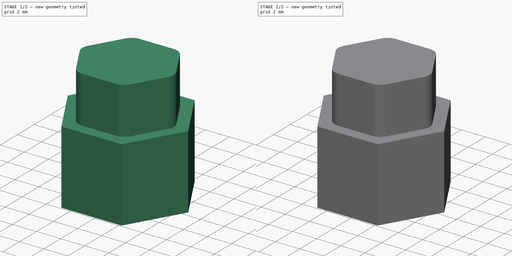
[diagram: build sequence overview — one tinted view per stage of 2, left to right]
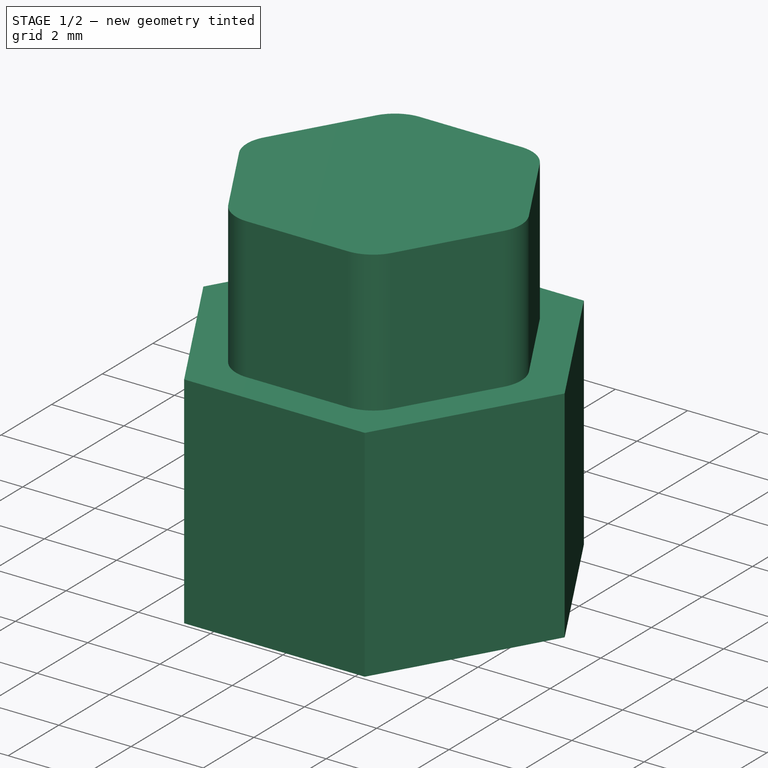
[diagram: stage 1 of 2 — iso view after this stage's code; geometry added in this stage tinted green]
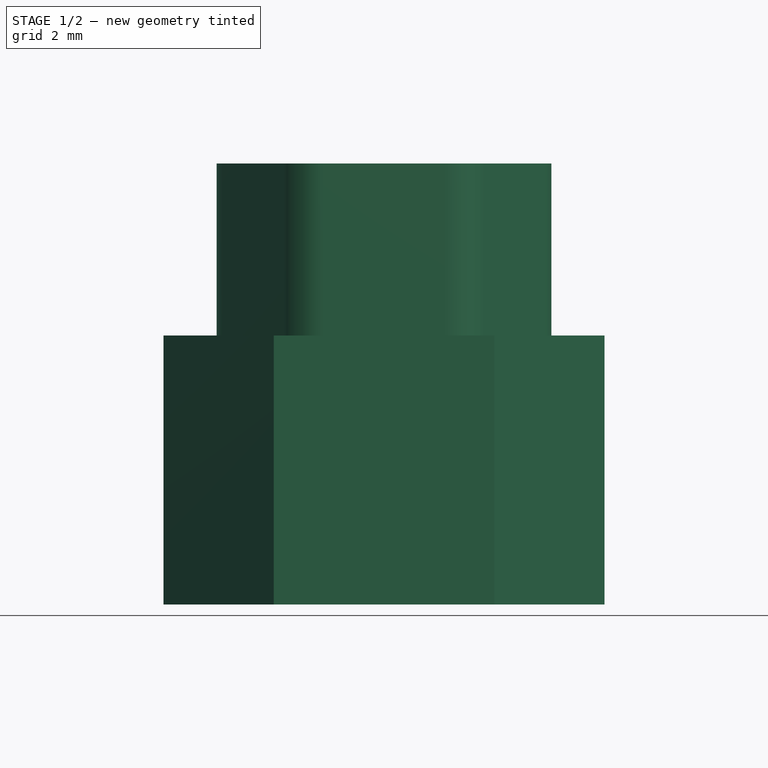
[diagram: stage 1 of 2 — front view after this stage's code; geometry added in this stage tinted green]
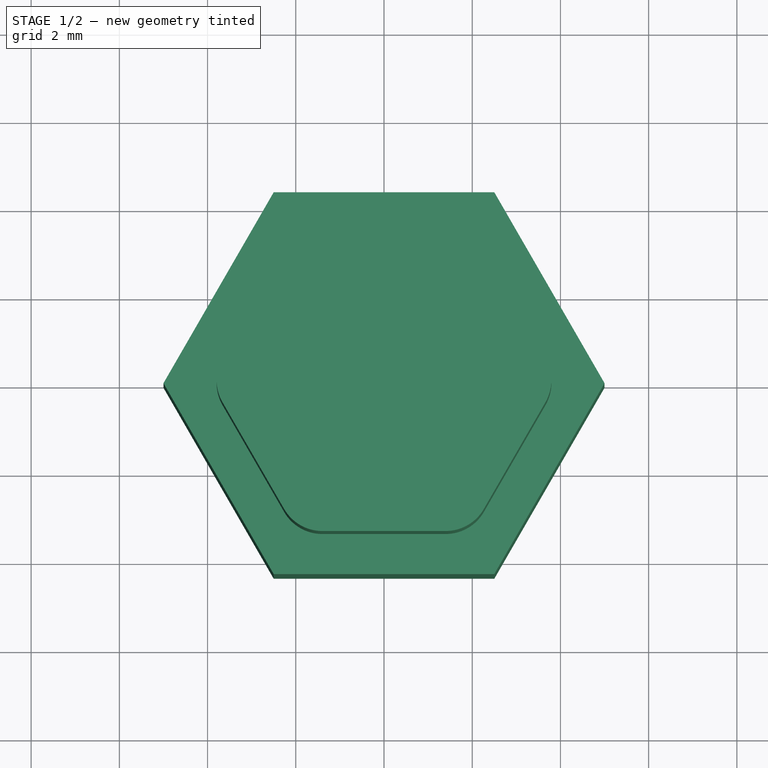
[diagram: stage 1 of 2 — top view after this stage's code; geometry added in this stage tinted green]
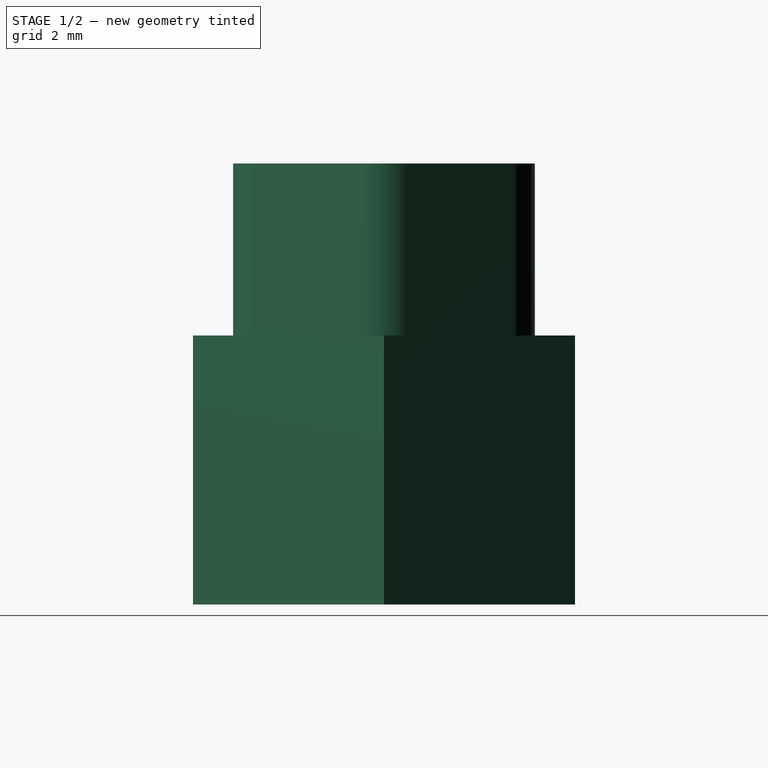
[diagram: stage 1 of 2 — right view after this stage's code; geometry added in this stage tinted green]
FCSTD DOCUMENT  (FreeCAD 0.21R33694 (Git))
Label: button-fc21-6
License: All rights reserved
LicenseURL: http://en.wikipedia.org/wiki/All_rights_reserved
objects: Sketcher::SketchObject×3, PartDesign::Pad×2, PartDesign::Plane×2, PartDesign::Pocket×1, PartDesign::Body×1
note: 12 computed .brp shape members not serialized (recipe doc carries the construction recipe); baked Part::Feature solids carry a one-line shape summary decoded from their .brp

FEATURE [Sketcher::SketchObject] Sketch
  FullyConstrained = true
  MapMode = 5
  Support = -> [XY_Plane]
  sketch-geometry (19):
    g0: LineSegment StartX=1.975 StartY=-3.4208 StartZ=0 EndX=3.95 EndY=0 EndZ=0
    g1: LineSegment StartX=3.95 StartY=0 StartZ=0 EndX=1.975 EndY=3.4208 EndZ=0
    g2: LineSegment StartX=1.975 StartY=3.4208 StartZ=0 EndX=-1.975 EndY=3.4208 EndZ=0
    g3: LineSegment StartX=-1.975 StartY=3.4208 StartZ=0 EndX=-3.95 EndY=0 EndZ=0
    g4: LineSegment StartX=-3.95 StartY=0 StartZ=0 EndX=-1.975 EndY=-3.4208 EndZ=0
    g5: LineSegment StartX=-1.975 StartY=-3.4208 StartZ=0 EndX=1.975 EndY=-3.4208 EndZ=0
    g6: Circle CenterX=0 CenterY=0 CenterZ=0 NormalX=0 NormalY=0 NormalZ=1 AngleXU=0 Radius=3.95
    g7: LineSegment StartX=-3.66133 StartY=0.49999 StartZ=0 EndX=-2.26368 EndY=2.92079 EndZ=0
    g8: LineSegment StartX=-1.39765 StartY=3.4208 StartZ=0 EndX=1.39765 EndY=3.4208 EndZ=0
    g9: LineSegment StartX=2.26368 StartY=2.92079 StartZ=0 EndX=3.66133 EndY=0.49999 EndZ=0
    g10: LineSegment StartX=3.66133 StartY=-0.49999 StartZ=0 EndX=2.26368 EndY=-2.92079 EndZ=0
    g11: LineSegment StartX=1.39765 StartY=-3.4208 StartZ=0 EndX=-1.39765 EndY=-3.4208 EndZ=0
    g12: LineSegment StartX=-2.26368 StartY=-2.92079 StartZ=0 EndX=-3.66133 EndY=-0.49999 EndZ=0
    g13: ArcOfCircle CenterX=1.39765 CenterY=2.4208 CenterZ=0 NormalX=0 NormalY=0 NormalZ=1 AngleXU=0 Radius=1 StartAngle=0.523588 EndAngle=1.5708
    g14: ArcOfCircle CenterX=2.7953 CenterY=1.4e-15 CenterZ=0 NormalX=0 NormalY=0 NormalZ=1 AngleXU=0 Radius=1 StartAngle=5.7596 EndAngle=6.80677
    g15: ArcOfCircle CenterX=1.39765 CenterY=-2.4208 CenterZ=0 NormalX=0 NormalY=0 NormalZ=1 AngleXU=0 Radius=1 StartAngle=4.71239 EndAngle=5.7596
    g16: ArcOfCircle CenterX=-1.39765 CenterY=-2.4208 CenterZ=0 NormalX=0 NormalY=0 NormalZ=1 AngleXU=0 Radius=1 StartAngle=3.66518 EndAngle=4.71239
    g17: ArcOfCircle CenterX=-2.7953 CenterY=2e-16 CenterZ=0 NormalX=0 NormalY=0 NormalZ=1 AngleXU=0 Radius=1 StartAngle=2.61801 EndAngle=3.66518
    g18: ArcOfCircle CenterX=-1.39765 CenterY=2.4208 CenterZ=0 NormalX=0 NormalY=0 NormalZ=1 AngleXU=0 Radius=1 StartAngle=1.5708 EndAngle=2.61801
  constraints (55):
    c: Coincident(g0,g1)
    c: Coincident(g1,g2)
    c: Coincident(g2,g3)
    c: Coincident(g3,g4)
    c: Coincident(g4,g5)
    c: Coincident(g5,g0)
    c: Equal(g0, g1-g5) x5
    c: PointOnObject(g0,g6)
    c: PointOnObject(g1,g6)
    c: PointOnObject(g2,g6)
    c: PointOnObject(g3,g6)
    c: PointOnObject(g4,g6)
    c: PointOnObject(g5,g6)
    c: Coincident(g6,g-1)
    c: Horizontal(g2)
    c: DistanceX(g3,g0) = 7.9
    c: Horizontal(g8)
    c: Horizontal(g11)
    c: Equal(g7,g8)
    c: Equal(g8,g9)
    c: Equal(g9,g10)
    c: Equal(g10,g11)
    c: Equal(g11,g12)
    c: Coincident(g13,g8)
    c: Coincident(g13,g9)
    c: Coincident(g14,g9)
    c: Coincident(g14,g10)
    c: Coincident(g15,g10)
    c: Coincident(g15,g11)
    c: Coincident(g16,g11)
    c: Coincident(g16,g12)
    c: Coincident(g17,g12)
    c: Coincident(g17,g7)
    c: Coincident(g18,g8)
    c: Coincident(g18,g7)
    c: Equal(g17,g18)
    c: Equal(g17, g13-g16) x4
    c: Radius(g17) = 1
    c: PointOnObject(g8,g2)
    c: PointOnObject(g9,g1)
    c: PointOnObject(g9,g1)
    c: PointOnObject(g10,g0)
    c: PointOnObject(g10,g0)
    c: PointOnObject(g11,g5)
    c: PointOnObject(g12,g4)
    c: PointOnObject(g12,g4)
    c: PointOnObject(g7,g3)
    c: PointOnObject(g7,g3)
    c: Horizontal(g10,g12)
    c: Horizontal(g7,g9)
    c: Tangent(g4,g16)
    c: Tangent(g5,g15)
    c: Tangent(g2,g18)
    c: Tangent(g13,g1)
    c: Tangent(g0,g14)
FEATURE [PartDesign::Pad] Pad
  Direction = (0,0,1)
  Length = 3.9
  Length2 = 10
  Profile = -> Sketch
  ReferenceAxis = -> Sketch [N_Axis]
  Type = 0
FEATURE [PartDesign::Plane] DatumPlane
  Length = 60
  MapMode = 5
  Placement = pos=(0,0,0) rot=(1,0,0;3.14159rad)
  ResizeMode = 0
  Support = -> [Pad]
  Width = 60
FEATURE [Sketcher::SketchObject] Sketch001
  FullyConstrained = true
  MapMode = 5
  Placement = pos=(0,0,0) rot=(1,0,0;3.14159rad)
  Support = -> [DatumPlane]
  sketch-geometry (7):
    g0: LineSegment StartX=5 StartY=9e-16 StartZ=0 EndX=2.5 EndY=4.33013 EndZ=0
    g1: LineSegment StartX=2.5 StartY=4.33013 StartZ=0 EndX=-2.5 EndY=4.33013 EndZ=0
    g2: LineSegment StartX=-2.5 StartY=4.33013 StartZ=0 EndX=-5 EndY=9e-16 EndZ=0
    g3: LineSegment StartX=-5 StartY=9e-16 StartZ=0 EndX=-2.5 EndY=-4.33013 EndZ=0
    g4: LineSegment StartX=-2.5 StartY=-4.33013 StartZ=0 EndX=2.5 EndY=-4.33013 EndZ=0
    g5: LineSegment StartX=2.5 StartY=-4.33013 StartZ=0 EndX=5 EndY=9e-16 EndZ=0
    g6: Circle CenterX=0 CenterY=0 CenterZ=0 NormalX=0 NormalY=0 NormalZ=1 AngleXU=0 Radius=5
  constraints (16):
    c: Coincident(g0,g1)
    c: Coincident(g1,g2)
    c: Coincident(g2,g3)
    c: Coincident(g3,g4)
    c: Coincident(g4,g5)
    c: Coincident(g5,g0)
    c: Equal(g0, g1-g5) x5
    c: PointOnObject(g0,g6)
    c: PointOnObject(g1,g6)
    c: PointOnObject(g2,g6)
    c: PointOnObject(g3,g6)
    c: PointOnObject(g4,g6)
    c: PointOnObject(g5,g6)
    c: Coincident(g6,g-1)
    c: DistanceX(g2,g0) = 10
    c: Horizontal(g1)
FEATURE [PartDesign::Pad] Pad001
  BaseFeature = -> Pad
  Direction = (0,0,-1)
  Length = 6.1
  Length2 = 10
  Profile = -> Sketch001
  ReferenceAxis = -> Sketch001 [N_Axis]
  Type = 0
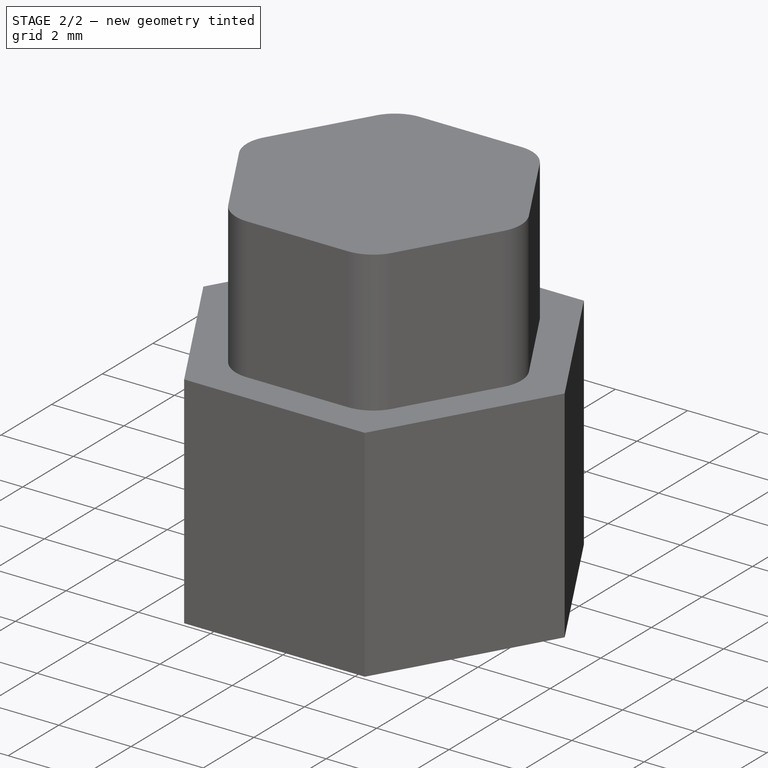
[diagram: stage 2 of 2 — iso view after this stage's code; geometry added in this stage tinted green]
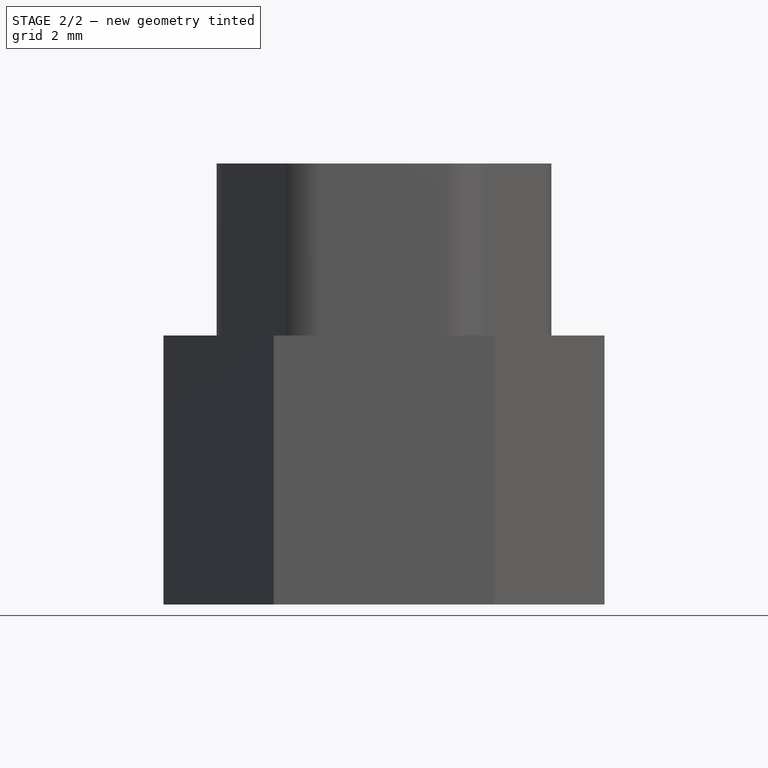
[diagram: stage 2 of 2 — front view after this stage's code; geometry added in this stage tinted green]
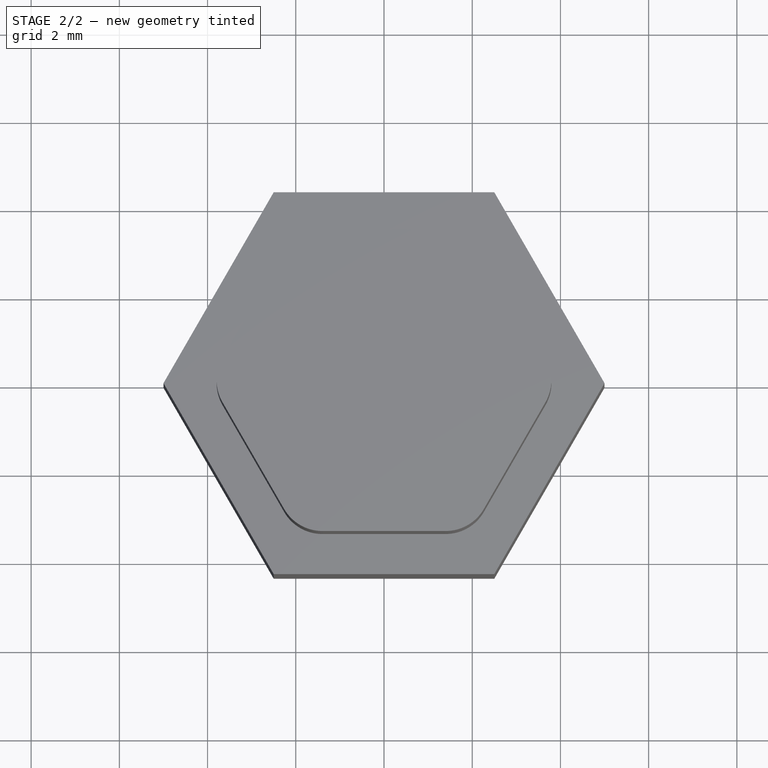
[diagram: stage 2 of 2 — top view after this stage's code; geometry added in this stage tinted green]
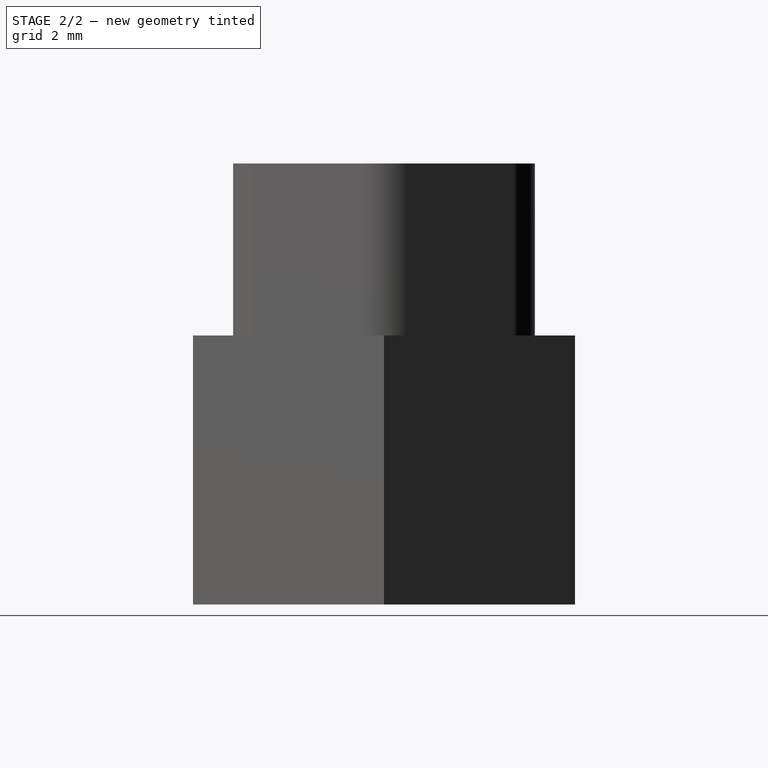
[diagram: stage 2 of 2 — right view after this stage's code; geometry added in this stage tinted green]
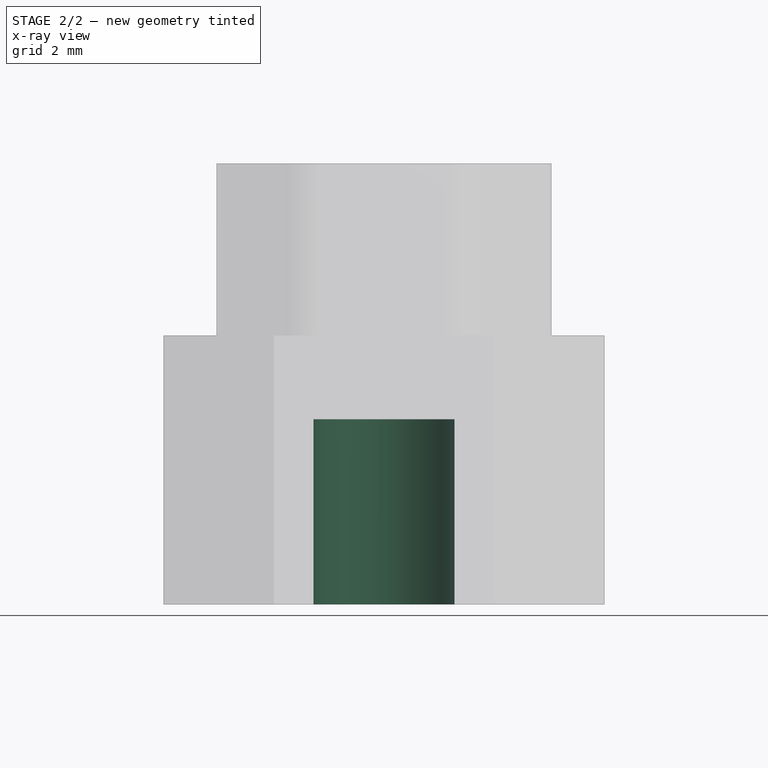
[diagram: stage 2 of 2 — x-ray composite at the front view; earlier geometry ghosted, this stage's added geometry solid]
FEATURE [PartDesign::Plane] DatumPlane001
  Length = 60
  MapMode = 5
  Placement = pos=(0,0,-6.1) rot=(1,0,0;3.14159rad)
  ResizeMode = 0
  Support = -> [Pad001]
  Width = 60
FEATURE [Sketcher::SketchObject] Sketch002
  FullyConstrained = true
  MapMode = 5
  Placement = pos=(0,0,-6.1) rot=(1,0,0;3.14159rad)
  Support = -> [DatumPlane001]
  sketch-geometry (1):
    g0: Circle CenterX=0 CenterY=0 CenterZ=0 NormalX=0 NormalY=0 NormalZ=1 AngleXU=0 Radius=1.6
  constraints (2):
    c: Coincident(g0,g-1)
    c: Diameter(g0) = 3.2
FEATURE [PartDesign::Pocket] Pocket
  BaseFeature = -> Pad001
  Direction = (0,0,1)
  Length = 4.2
  Length2 = 5
  Profile = -> Sketch002
  ReferenceAxis = -> Sketch002 [N_Axis]
  Type = 0
FEATURE [PartDesign::Body] Body
  Group = -> [Sketch,Pad,DatumPlane,Sketch001,Pad001,DatumPlane001,Sketch002,Pocket]
  Origin = -> Origin
  Placement = pos=(0,0,-3.6) rot=(0,0,1;0rad)
  Tip = -> Pocket
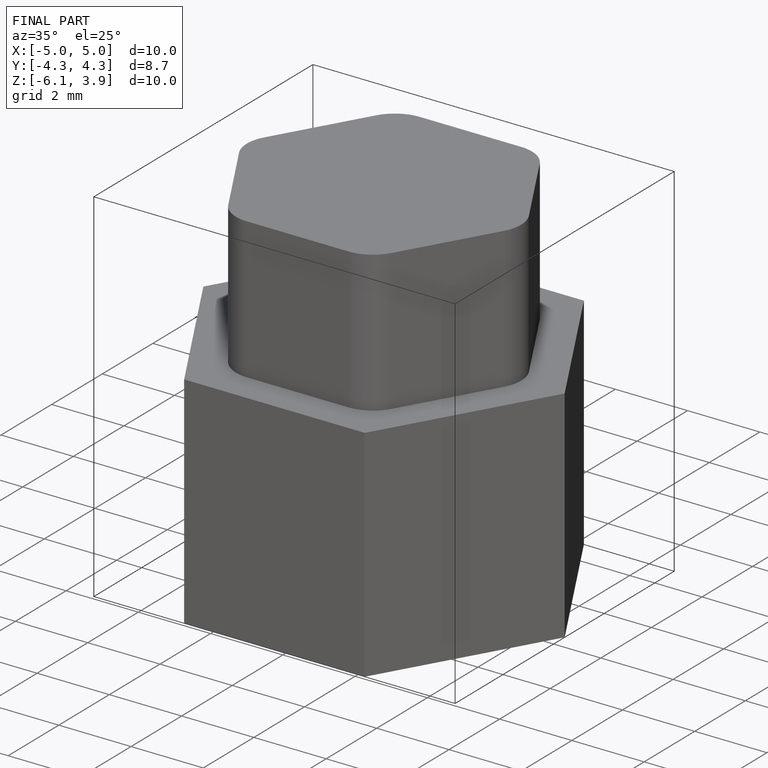
[diagram: finished part — iso view with bounding-box wireframe]
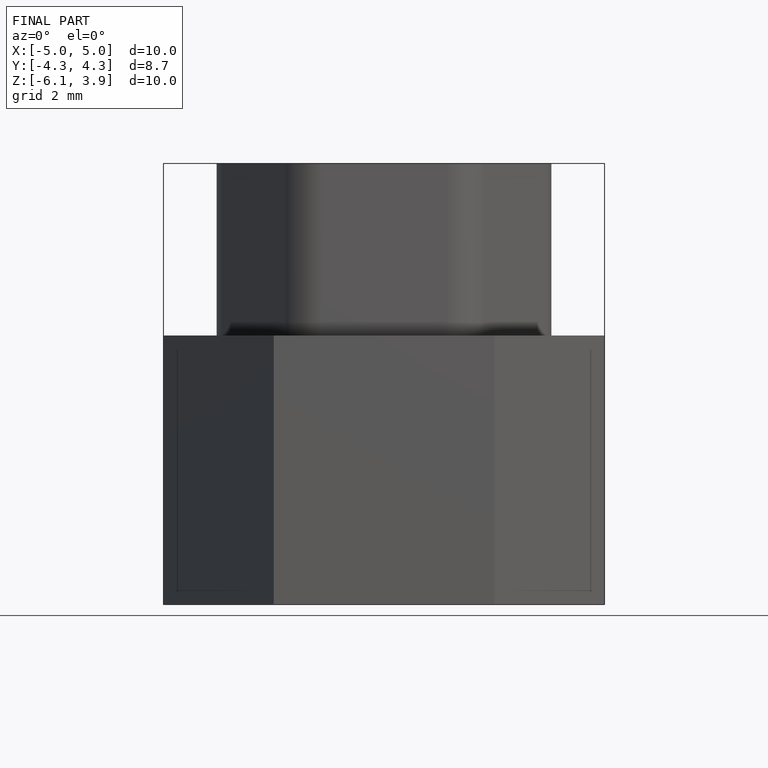
[diagram: finished part — front view with bounding-box wireframe]
